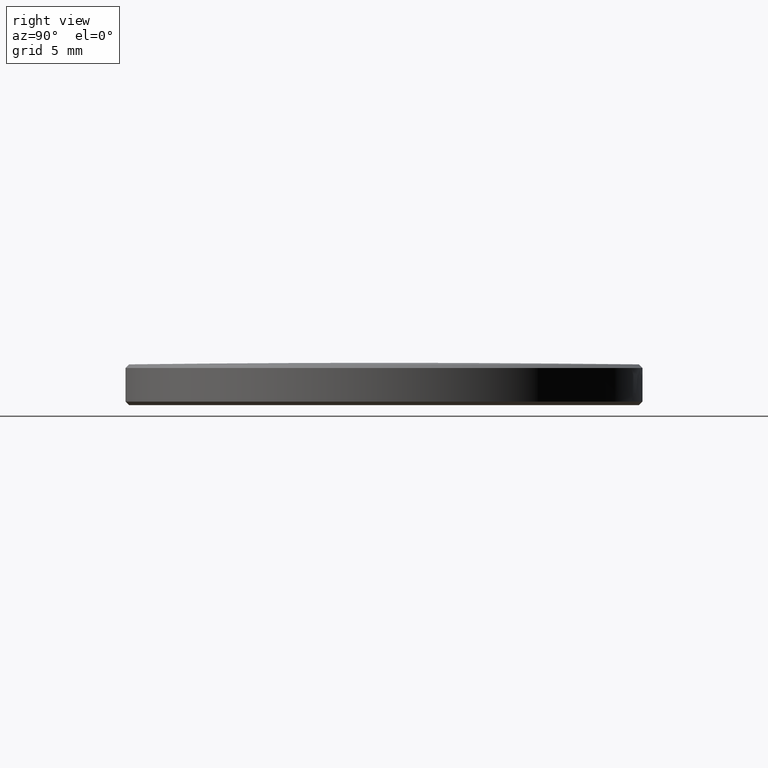
[diagram: clean part render]
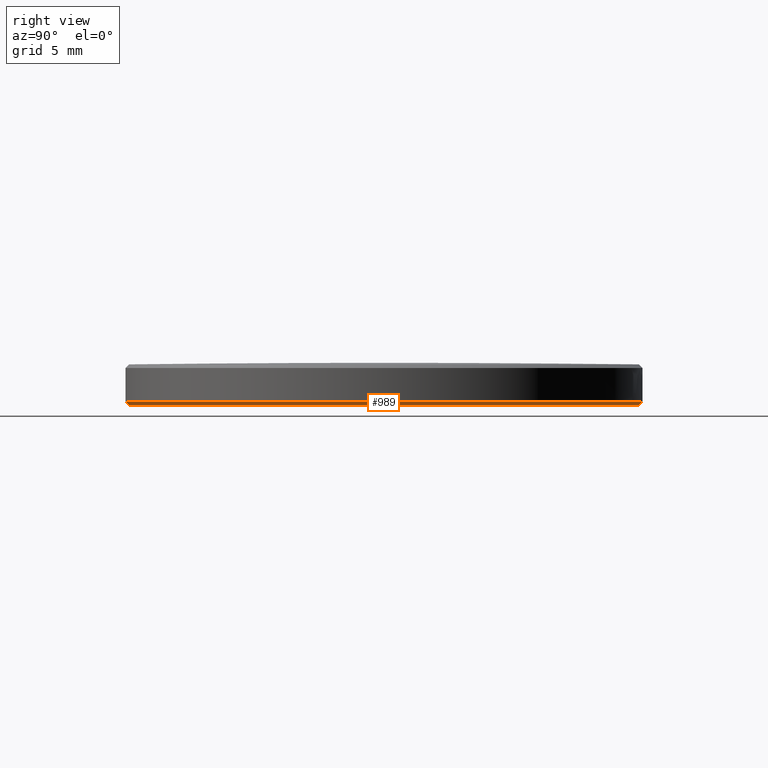
[diagram: same view with one face highlighted and labeled with its STEP entity id]
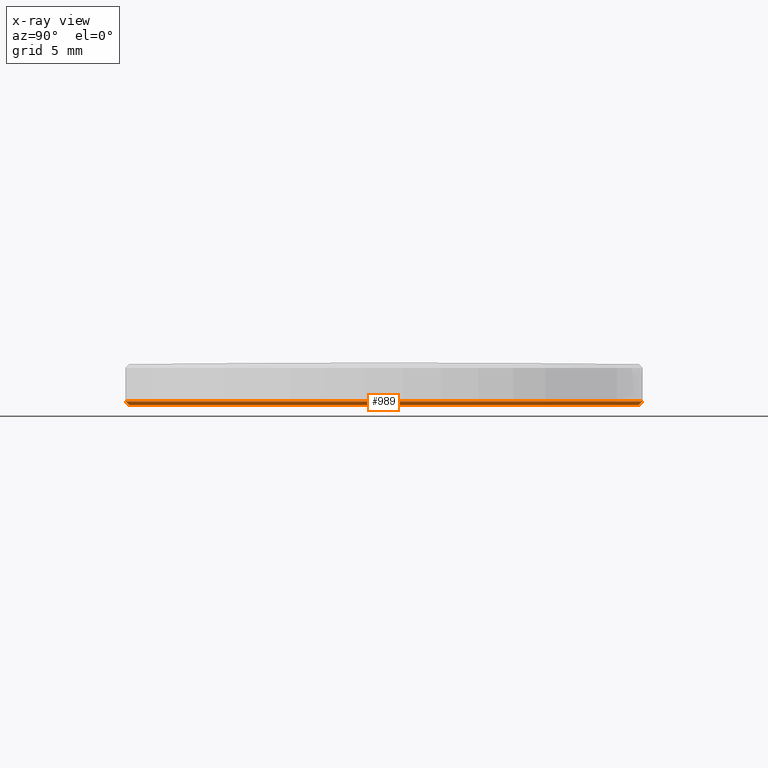
[diagram: x-ray of the same camera — body ghosted, the highlighted face saturated]
A machine part, right view. The second image highlights one B-rep face of the part: STEP entity #989.
The next image is the same camera in x-ray: the body ghosted, the highlighted face saturated — about 0% of this face is hidden behind the body in this view.
In plain terms, the highlighted conical surface has half-angle 45 deg.
Its self-contained STEP definition (entity closure, byte-faithful):
#189 = DIRECTION ( 'NONE',  ( -0.0000000000000000000, -1.836970198721029688E-16, 1.000000000000000000 ) ) ;
#215 = VECTOR ( 'NONE', #365, 39.37007874015748143 ) ;
#365 = DIRECTION ( 'NONE',  ( 0.0000000000000000000, -0.7071067811865463515, 0.7071067811865486830 ) ) ;
#526 = AXIS2_PLACEMENT_3D ( 'NONE', #691, #898, #706 ) ;
#537 = EDGE_CURVE ( 'NONE', #2414, #963, #1556, .T. ) ;
#556 = CARTESIAN_POINT ( 'NONE',  ( 0.0000000000000000000, -0.4930402875867466173, -0.04094488188976407039 ) ) ;
#691 = CARTESIAN_POINT ( 'NONE',  ( 0.0000000000000000000, 1.383674879621512820E-17, -0.03398516947651054887 ) ) ;
#706 = DIRECTION ( 'NONE',  ( 0.0000000000000000000, -1.000000000000000000, -1.878145495644180839E-16 ) ) ;
#827 = ORIENTED_EDGE ( 'NONE', *, *, #537, .T. ) ;
#865 = CARTESIAN_POINT ( 'NONE',  ( 6.080618048087381191E-17, 0.4930402875867466173, -0.04094488188976387610 ) ) ;
#866 = CIRCLE ( 'NONE', #526, 0.5000000000000000000 ) ;
#898 = DIRECTION ( 'NONE',  ( -0.0000000000000000000, -1.836970198721029688E-16, 1.000000000000000000 ) ) ;
#943 = CONICAL_SURFACE ( 'NONE', #2789, 0.4930402875867466173, 0.7853981633974465026 ) ;
#963 = VERTEX_POINT ( 'NONE', #865 ) ;
#989 = ADVANCED_FACE ( 'NONE', ( #2184 ), #943, .T. ) ;
#1114 = VERTEX_POINT ( 'NONE', #2261 ) ;
#1124 = VERTEX_POINT ( 'NONE', #1192 ) ;
#1151 = ORIENTED_EDGE ( 'NONE', *, *, #2646, .F. ) ;
#1155 = DIRECTION ( 'NONE',  ( 8.659560562354916834E-17, 0.7071067811865461294, 0.7071067811865489050 ) ) ;
#1186 = LINE ( 'NONE', #1593, #1358 ) ;
#1192 = CARTESIAN_POINT ( 'NONE',  ( 0.0000000000000000000, -0.5000000000000000000, -0.03398516947651064601 ) ) ;
#1231 = EDGE_CURVE ( 'NONE', #1124, #1114, #866, .T. ) ;
#1278 = DIRECTION ( 'NONE',  ( 0.0000000000000000000, -1.000000000000000000, -1.904657228760170810E-16 ) ) ;
#1279 = CARTESIAN_POINT ( 'NONE',  ( 0.0000000000000000000, 1.511522722569666275E-17, -0.04094488188976397325 ) ) ;
#1286 = EDGE_CURVE ( 'NONE', #963, #1114, #1186, .T. ) ;
#1358 = VECTOR ( 'NONE', #1155, 39.37007874015748143 ) ;
#1466 = LINE ( 'NONE', #2262, #215 ) ;
#1556 = CIRCLE ( 'NONE', #2205, 0.4930402875867466173 ) ;
#1593 = CARTESIAN_POINT ( 'NONE',  ( 6.038002100437997579E-17, 0.4930402875867466173, -0.04094488188976387610 ) ) ;
#1703 = DIRECTION ( 'NONE',  ( -0.0000000000000000000, -1.836970198721029688E-16, 1.000000000000000000 ) ) ;
#2087 = EDGE_LOOP ( 'NONE', ( #827, #2642, #2333, #1151 ) ) ;
#2125 = DIRECTION ( 'NONE',  ( 0.0000000000000000000, -1.000000000000000000, -1.904657228760170810E-16 ) ) ;
#2184 = FACE_OUTER_BOUND ( 'NONE', #2087, .T. ) ;
#2205 = AXIS2_PLACEMENT_3D ( 'NONE', #1279, #1703, #2125 ) ;
#2261 = CARTESIAN_POINT ( 'NONE',  ( 6.123233995736766036E-17, 0.5000000000000000000, -0.03398516947651045866 ) ) ;
#2262 = CARTESIAN_POINT ( 'NONE',  ( 0.0000000000000000000, -0.4930402875867466173, -0.04094488188976407039 ) ) ;
#2333 = ORIENTED_EDGE ( 'NONE', *, *, #1231, .F. ) ;
#2414 = VERTEX_POINT ( 'NONE', #556 ) ;
#2642 = ORIENTED_EDGE ( 'NONE', *, *, #1286, .T. ) ;
#2646 = EDGE_CURVE ( 'NONE', #2414, #1124, #1466, .T. ) ;
#2789 = AXIS2_PLACEMENT_3D ( 'NONE', #2794, #189, #1278 ) ;
#2794 = CARTESIAN_POINT ( 'NONE',  ( 0.0000000000000000000, 1.511522722569666275E-17, -0.04094488188976397325 ) ) ;